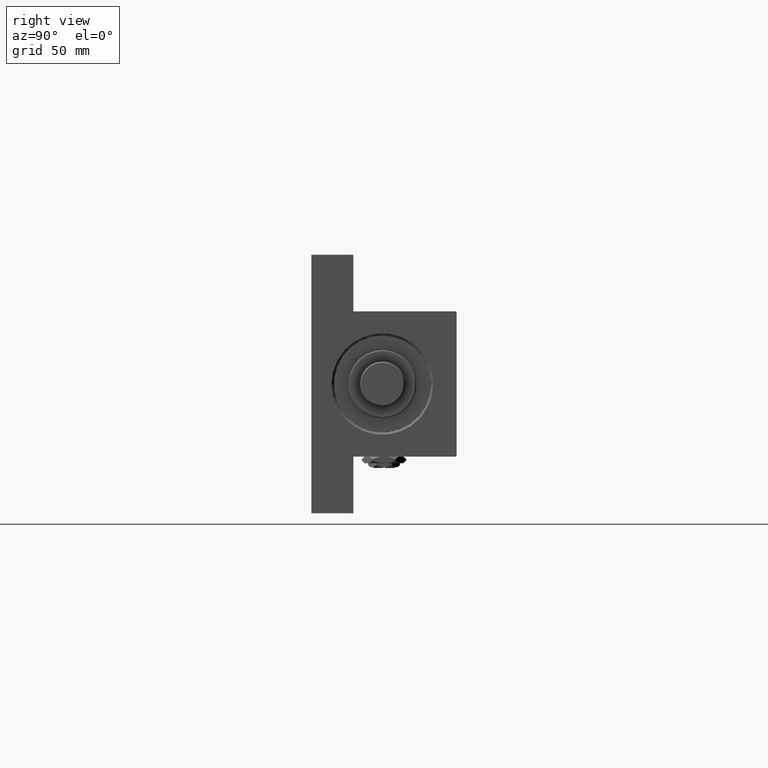
[diagram: clean part render]
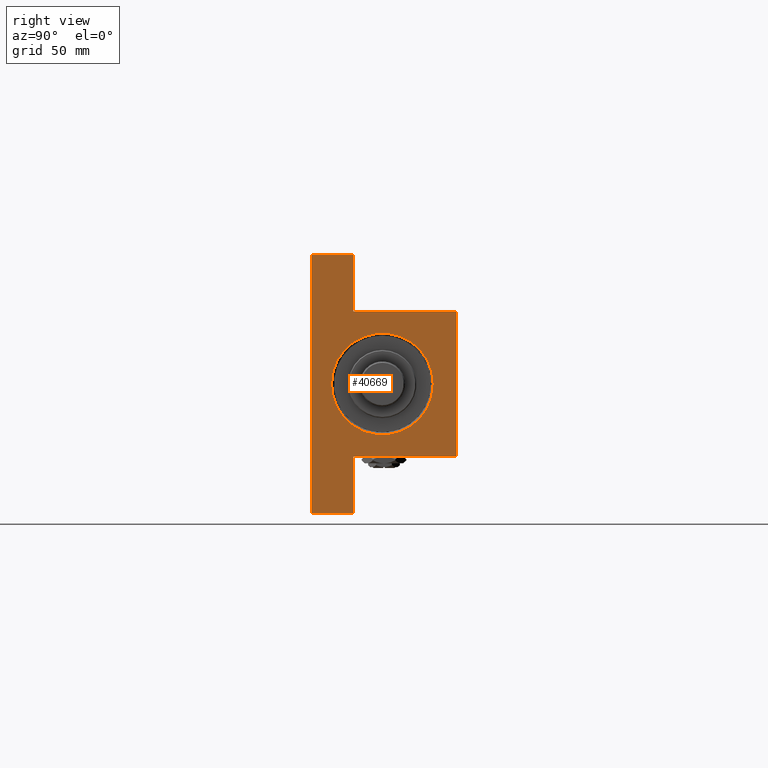
[diagram: same view with one face highlighted and labeled with its STEP entity id]
A machine part, right view. The second image highlights one B-rep face of the part: STEP entity #40669.
In plain terms, the highlighted planar face has unit normal (-1, 0, -0).
Its self-contained STEP definition (entity closure, byte-faithful):
#693 = CARTESIAN_POINT ( 'NONE',  ( 337.9999999999999432, 45.00000000000001421, 44.49999999999994316 ) ) ;
#1175 = CARTESIAN_POINT ( 'NONE',  ( 337.9999999999999432, -80.00000000000004263, -19.00000000000000000 ) ) ;
#2062 = LINE ( 'NONE', #29199, #35300 ) ;
#2822 = VERTEX_POINT ( 'NONE', #1175 ) ;
#3146 = ORIENTED_EDGE ( 'NONE', *, *, #25937, .T. ) ;
#3147 = VERTEX_POINT ( 'NONE', #13275 ) ;
#3602 = CARTESIAN_POINT ( 'NONE',  ( 337.9999999999999432, 45.00000000000001421, 45.00000000000000000 ) ) ;
#4386 = EDGE_CURVE ( 'NONE', #6953, #27052, #2062, .T. ) ;
#4670 = EDGE_CURVE ( 'NONE', #14123, #17435, #40142, .T. ) ;
#5171 = EDGE_LOOP ( 'NONE', ( #48746, #24673, #19648, #3146, #12008, #9779, #8292, #16484, #41209, #17319 ) ) ;
#5344 = DIRECTION ( 'NONE',  ( 0.000000000000000000, -1.000000000000000000, 0.000000000000000000 ) ) ;
#6760 = LINE ( 'NONE', #7260, #34667 ) ;
#6888 = EDGE_CURVE ( 'NONE', #23216, #37604, #27918, .T. ) ;
#6953 = VERTEX_POINT ( 'NONE', #47952 ) ;
#7099 = CARTESIAN_POINT ( 'NONE',  ( 337.9999999999999432, 79.99999999999998579, -19.00000000000000000 ) ) ;
#7260 = CARTESIAN_POINT ( 'NONE',  ( 337.9999999999999432, 44.49999999999995737, 45.00000000000000000 ) ) ;
#7264 = VECTOR ( 'NONE', #9849, 1000.000000000000000 ) ;
#7566 = CARTESIAN_POINT ( 'NONE',  ( 337.9999999999999432, 0.000000000000000000, 0.000000000000000000 ) ) ;
#7866 = CIRCLE ( 'NONE', #20831, 31.49999999999997158 ) ;
#8292 = ORIENTED_EDGE ( 'NONE', *, *, #47958, .T. ) ;
#8686 = EDGE_CURVE ( 'NONE', #15625, #3147, #16665, .T. ) ;
#9296 = CARTESIAN_POINT ( 'NONE',  ( 337.9999999999999432, 0.000000000000000000, -1.000000000000000888 ) ) ;
#9350 = CARTESIAN_POINT ( 'NONE',  ( 337.9999999999999432, 79.99999999999998579, -19.00000000000000000 ) ) ;
#9779 = ORIENTED_EDGE ( 'NONE', *, *, #14272, .T. ) ;
#9849 = DIRECTION ( 'NONE',  ( 0.000000000000000000, 0.000000000000000000, -1.000000000000000000 ) ) ;
#10702 = LINE ( 'NONE', #26158, #40663 ) ;
#12008 = ORIENTED_EDGE ( 'NONE', *, *, #4386, .T. ) ;
#12471 = CARTESIAN_POINT ( 'NONE',  ( 337.9999999999999432, 44.99999999999992895, -19.00000000000000000 ) ) ;
#13114 = CARTESIAN_POINT ( 'NONE',  ( 337.9999999999999432, 45.00000000000001421, 45.00000000000000000 ) ) ;
#13275 = CARTESIAN_POINT ( 'NONE',  ( 337.9999999999999432, -44.49999999999997158, 44.99999999999998579 ) ) ;
#13376 = CARTESIAN_POINT ( 'NONE',  ( 337.9999999999999432, 79.99999999999998579, -45.00000000000000000 ) ) ;
#13439 = AXIS2_PLACEMENT_3D ( 'NONE', #16217, #27867, #39534 ) ;
#14123 = VERTEX_POINT ( 'NONE', #31267 ) ;
#14272 = EDGE_CURVE ( 'NONE', #27052, #2822, #18044, .T. ) ;
#14657 = PLANE ( 'NONE',  #35483 ) ;
#15625 = VERTEX_POINT ( 'NONE', #21490 ) ;
#15643 = EDGE_CURVE ( 'NONE', #34904, #41553, #48616, .T. ) ;
#16013 = DIRECTION ( 'NONE',  ( 0.000000000000000000, 0.000000000000000000, -1.000000000000000000 ) ) ;
#16176 = VECTOR ( 'NONE', #49609, 1000.000000000000000 ) ;
#16217 = CARTESIAN_POINT ( 'NONE',  ( 337.9999999999999432, 0.000000000000000000, -1.000000000000000888 ) ) ;
#16484 = ORIENTED_EDGE ( 'NONE', *, *, #29398, .F. ) ;
#16665 = LINE ( 'NONE', #13114, #25726 ) ;
#17319 = ORIENTED_EDGE ( 'NONE', *, *, #46906, .T. ) ;
#17435 = VERTEX_POINT ( 'NONE', #17439 ) ;
#17439 = CARTESIAN_POINT ( 'NONE',  ( 337.9999999999999432, 3.857637417314158745E-15, 30.49999999999997158 ) ) ;
#17530 = DIRECTION ( 'NONE',  ( 0.000000000000000000, 7.709882115452478166E-17, -1.000000000000000000 ) ) ;
#17802 = CARTESIAN_POINT ( 'NONE',  ( 337.9999999999999432, -80.00000000000004263, -19.00000000000000000 ) ) ;
#18044 = LINE ( 'NONE', #17802, #18533 ) ;
#18533 = VECTOR ( 'NONE', #25638, 1000.000000000000000 ) ;
#19168 = VECTOR ( 'NONE', #16013, 1000.000000000000000 ) ;
#19648 = ORIENTED_EDGE ( 'NONE', *, *, #8686, .T. ) ;
#20546 = CARTESIAN_POINT ( 'NONE',  ( 337.9999999999999432, 45.00000000000001421, -45.00000000000000000 ) ) ;
#20693 = VERTEX_POINT ( 'NONE', #24204 ) ;
#20831 = AXIS2_PLACEMENT_3D ( 'NONE', #9296, #24742, #40211 ) ;
#21490 = CARTESIAN_POINT ( 'NONE',  ( 337.9999999999999432, 44.49999999999995737, 45.00000000000000000 ) ) ;
#21966 = DIRECTION ( 'NONE',  ( 0.000000000000000000, -0.7071067811865474617, 0.7071067811865474617 ) ) ;
#22486 = LINE ( 'NONE', #37966, #16176 ) ;
#23216 = VERTEX_POINT ( 'NONE', #693 ) ;
#24204 = CARTESIAN_POINT ( 'NONE',  ( 337.9999999999999432, -80.00000000000004263, -45.00000000000000000 ) ) ;
#24673 = ORIENTED_EDGE ( 'NONE', *, *, #45342, .T. ) ;
#24742 = DIRECTION ( 'NONE',  ( -1.000000000000000000, -0.000000000000000000, -0.000000000000000000 ) ) ;
#25063 = DIRECTION ( 'NONE',  ( 0.000000000000000000, -1.000000000000000000, 0.000000000000000000 ) ) ;
#25546 = CARTESIAN_POINT ( 'NONE',  ( 337.9999999999999432, 79.99999999999998579, -19.00000000000000000 ) ) ;
#25638 = DIRECTION ( 'NONE',  ( -0.000000000000000000, -1.000000000000000000, -0.000000000000000000 ) ) ;
#25726 = VECTOR ( 'NONE', #35435, 1000.000000000000000 ) ;
#25937 = EDGE_CURVE ( 'NONE', #3147, #6953, #10702, .T. ) ;
#26158 = CARTESIAN_POINT ( 'NONE',  ( 337.9999999999999432, -45.00000000000000000, 44.49999999999998579 ) ) ;
#26561 = FACE_BOUND ( 'NONE', #27760, .T. ) ;
#27052 = VERTEX_POINT ( 'NONE', #32399 ) ;
#27760 = EDGE_LOOP ( 'NONE', ( #47658, #28501 ) ) ;
#27867 = DIRECTION ( 'NONE',  ( -1.000000000000000000, -0.000000000000000000, -0.000000000000000000 ) ) ;
#27918 = LINE ( 'NONE', #3602, #19168 ) ;
#28501 = ORIENTED_EDGE ( 'NONE', *, *, #36341, .T. ) ;
#28876 = LINE ( 'NONE', #25546, #46896 ) ;
#29199 = CARTESIAN_POINT ( 'NONE',  ( 337.9999999999999432, -45.00000000000000000, 44.99999999999998579 ) ) ;
#29398 = EDGE_CURVE ( 'NONE', #41553, #20693, #47931, .T. ) ;
#31267 = CARTESIAN_POINT ( 'NONE',  ( 337.9999999999999432, 0.000000000000000000, -32.49999999999997158 ) ) ;
#32399 = CARTESIAN_POINT ( 'NONE',  ( 337.9999999999999432, -44.99999999999999289, -18.99999999999997513 ) ) ;
#34667 = VECTOR ( 'NONE', #21966, 1000.000000000000114 ) ;
#34904 = VERTEX_POINT ( 'NONE', #7099 ) ;
#35300 = VECTOR ( 'NONE', #17530, 1000.000000000000000 ) ;
#35435 = DIRECTION ( 'NONE',  ( 0.000000000000000000, -1.000000000000000000, -1.541976423090495140E-16 ) ) ;
#35483 = AXIS2_PLACEMENT_3D ( 'NONE', #7566, #42015, #42516 ) ;
#36341 = EDGE_CURVE ( 'NONE', #17435, #14123, #7866, .T. ) ;
#37604 = VERTEX_POINT ( 'NONE', #12471 ) ;
#37966 = CARTESIAN_POINT ( 'NONE',  ( 337.9999999999999432, -80.00000000000004263, -19.00000000000000000 ) ) ;
#39170 = VECTOR ( 'NONE', #5344, 1000.000000000000000 ) ;
#39534 = DIRECTION ( 'NONE',  ( 0.000000000000000000, 0.000000000000000000, 1.000000000000000000 ) ) ;
#40142 = CIRCLE ( 'NONE', #13439, 31.49999999999997158 ) ;
#40211 = DIRECTION ( 'NONE',  ( 0.000000000000000000, 0.000000000000000000, 1.000000000000000000 ) ) ;
#40663 = VECTOR ( 'NONE', #48976, 1000.000000000000114 ) ;
#40669 = ADVANCED_FACE ( 'NONE', ( #26561, #49381 ), #14657, .F. ) ;
#41209 = ORIENTED_EDGE ( 'NONE', *, *, #15643, .F. ) ;
#41553 = VERTEX_POINT ( 'NONE', #13376 ) ;
#42015 = DIRECTION ( 'NONE',  ( -1.000000000000000000, 0.000000000000000000, -0.000000000000000000 ) ) ;
#42516 = DIRECTION ( 'NONE',  ( -0.000000000000000000, 0.000000000000000000, 1.000000000000000000 ) ) ;
#45342 = EDGE_CURVE ( 'NONE', #23216, #15625, #6760, .T. ) ;
#46896 = VECTOR ( 'NONE', #25063, 1000.000000000000000 ) ;
#46906 = EDGE_CURVE ( 'NONE', #34904, #37604, #28876, .T. ) ;
#47658 = ORIENTED_EDGE ( 'NONE', *, *, #4670, .T. ) ;
#47931 = LINE ( 'NONE', #20546, #39170 ) ;
#47952 = CARTESIAN_POINT ( 'NONE',  ( 337.9999999999999432, -45.00000000000000000, 44.49999999999998579 ) ) ;
#47958 = EDGE_CURVE ( 'NONE', #2822, #20693, #22486, .T. ) ;
#48616 = LINE ( 'NONE', #9350, #7264 ) ;
#48746 = ORIENTED_EDGE ( 'NONE', *, *, #6888, .F. ) ;
#48976 = DIRECTION ( 'NONE',  ( -0.000000000000000000, -0.7071067811865474617, -0.7071067811865474617 ) ) ;
#49381 = FACE_OUTER_BOUND ( 'NONE', #5171, .T. ) ;
#49609 = DIRECTION ( 'NONE',  ( 0.000000000000000000, 0.000000000000000000, -1.000000000000000000 ) ) ;